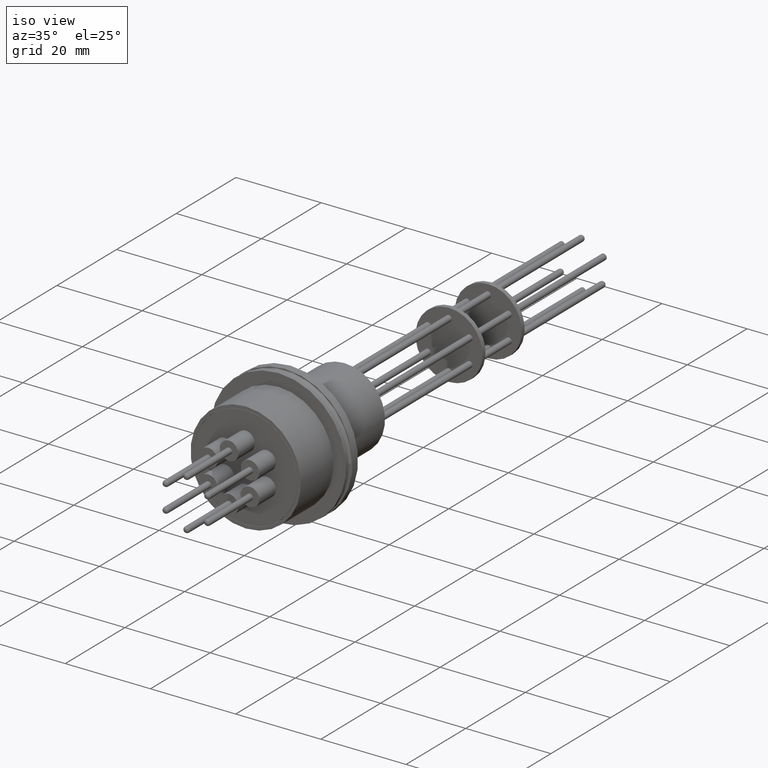
[diagram: clean part render]
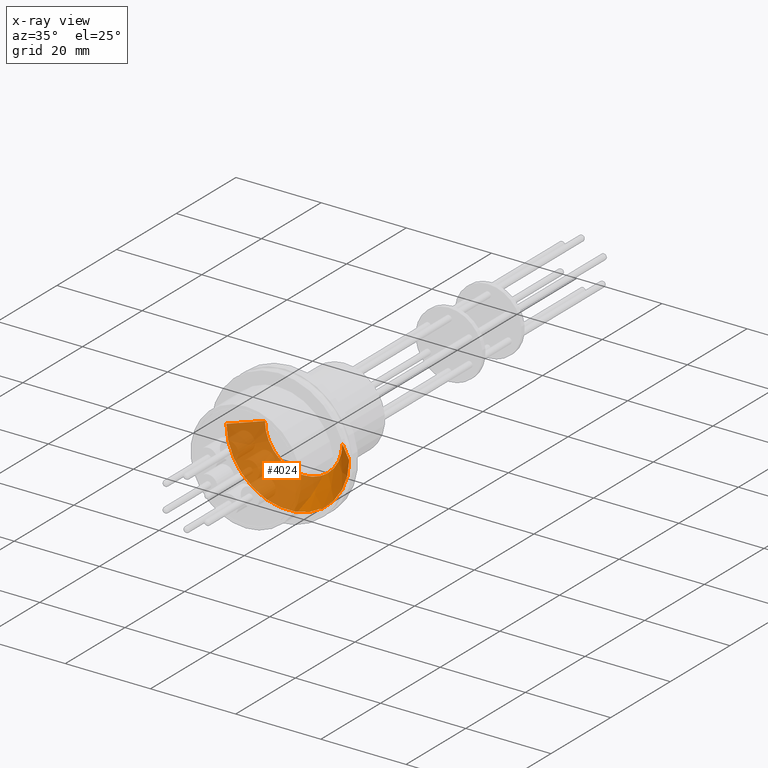
[diagram: x-ray — body ghosted, one internal face saturated and labeled with its STEP entity id]
A machine part, iso view, then the same camera in x-ray: the body is ghosted and one INTERNAL B-rep face — a face not visible from any outside direction — is saturated and labeled: STEP entity #4024.
In plain terms, the highlighted conical surface has half-angle 45 deg.
Its self-contained STEP definition (entity closure, byte-faithful):
#1183 = AXIS2_PLACEMENT_3D ( 'NONE', #3286, #3288, #3301 ) ;
#1231 = AXIS2_PLACEMENT_3D ( 'NONE', #3249, #3246, #3256 ) ;
#1232 = AXIS2_PLACEMENT_3D ( 'NONE', #3273, #3263, #3260 ) ;
#1233 = AXIS2_PLACEMENT_3D ( 'NONE', #3281, #3280, #3290 ) ;
#1662 = VERTEX_POINT ( 'NONE', #5913 ) ;
#1664 = VERTEX_POINT ( 'NONE', #5911 ) ;
#1674 = VERTEX_POINT ( 'NONE', #5901 ) ;
#1700 = VERTEX_POINT ( 'NONE', #5875 ) ;
#1722 = VERTEX_POINT ( 'NONE', #5982 ) ;
#1843 = EDGE_LOOP ( 'NONE', ( #7258, #7259, #7252, #7253, #7251 ) ) ;
#2896 = EDGE_CURVE ( 'NONE', #1700, #1664, #7005, .T. ) ;
#2897 = EDGE_CURVE ( 'NONE', #1700, #1722, #7004, .T. ) ;
#2898 = EDGE_CURVE ( 'NONE', #1674, #1722, #7002, .T. ) ;
#2899 = EDGE_CURVE ( 'NONE', #1662, #1674, #7001, .T. ) ;
#2900 = EDGE_CURVE ( 'NONE', #1664, #1662, #6999, .T. ) ;
#3246 = DIRECTION ( 'NONE',  ( 0.0000000000000000000, -1.000000000000000000, 0.0000000000000000000 ) ) ;
#3249 = CARTESIAN_POINT ( 'NONE',  ( -0.02489983635234983100, 0.8198035689274826300, 0.0000000000000000000 ) ) ;
#3256 = DIRECTION ( 'NONE',  ( 0.0000000000000000000, 0.0000000000000000000, -1.000000000000000000 ) ) ;
#3260 = DIRECTION ( 'NONE',  ( 1.000000000000000000, -1.203457265931388200E-016, 0.0000000000000000000 ) ) ;
#3263 = DIRECTION ( 'NONE',  ( 6.017286329656942200E-017, 1.000000000000000000, -0.0000000000000000000 ) ) ;
#3265 = CARTESIAN_POINT ( 'NONE',  ( 0.5426001636476526200, 0.6103060942444235000, 0.0000000000000000000 ) ) ;
#3273 = CARTESIAN_POINT ( 'NONE',  ( -0.02489983635234983100, 0.6103060942444235000, 0.0000000000000000000 ) ) ;
#3278 = DIRECTION ( 'NONE',  ( 0.7071067811865490200, -0.7071067811865460200, 0.0000000000000000000 ) ) ;
#3280 = DIRECTION ( 'NONE',  ( 0.0000000000000000000, -1.000000000000000000, 0.0000000000000000000 ) ) ;
#3281 = CARTESIAN_POINT ( 'NONE',  ( -0.02489983635234983100, 0.8198035689274826300, 0.0000000000000000000 ) ) ;
#3286 = CARTESIAN_POINT ( 'NONE',  ( -0.02489983635234983100, 0.6103060942444235000, 0.0000000000000000000 ) ) ;
#3288 = DIRECTION ( 'NONE',  ( -6.017286329656942200E-017, -1.000000000000000000, 0.0000000000000000000 ) ) ;
#3290 = DIRECTION ( 'NONE',  ( 0.0000000000000000000, 0.0000000000000000000, -1.000000000000000000 ) ) ;
#3291 = DIRECTION ( 'NONE',  ( -0.7071067811865490200, -0.7071067811865460200, 8.659560562354951300E-017 ) ) ;
#3300 = CARTESIAN_POINT ( 'NONE',  ( -0.5923998363523522700, 0.6103060942444236100, 6.949870585161259100E-017 ) ) ;
#3301 = DIRECTION ( 'NONE',  ( 1.000000000000000000, -1.203457265931388200E-016, 0.0000000000000000000 ) ) ;
#4024 = ADVANCED_FACE ( 'NONE', ( #6893 ), #6887, .F. ) ;
#5875 = CARTESIAN_POINT ( 'NONE',  ( -0.3829023616692922600, 0.8198035689274826300, 5.667068526160944100E-017 ) ) ;
#5901 = CARTESIAN_POINT ( 'NONE',  ( 0.5426001636476525100, 0.6103060942444235000, 0.0000000000000000000 ) ) ;
#5911 = CARTESIAN_POINT ( 'NONE',  ( -0.02489983635234980400, 0.8198035689274826300, -0.3580025253169421000 ) ) ;
#5913 = CARTESIAN_POINT ( 'NONE',  ( 0.3331026889645926100, 0.8198035689274826300, 0.0000000000000000000 ) ) ;
#5982 = CARTESIAN_POINT ( 'NONE',  ( -0.5923998363523522700, 0.6103060942444236100, 6.949870585161259100E-017 ) ) ;
#6887 = CONICAL_SURFACE ( 'NONE', #1183, 0.5675000000000024500, 0.7853981633974503900 ) ;
#6893 = FACE_OUTER_BOUND ( 'NONE', #1843, .T. ) ;
#6997 = VECTOR ( 'NONE', #3278, 39.37007874015748100 ) ;
#6999 = CIRCLE ( 'NONE', #1231, 0.3580025253169424300 ) ;
#7000 = VECTOR ( 'NONE', #3291, 39.37007874015748100 ) ;
#7001 = LINE ( 'NONE', #3265, #6997 ) ;
#7002 = CIRCLE ( 'NONE', #1232, 0.5675000000000024500 ) ;
#7004 = LINE ( 'NONE', #3300, #7000 ) ;
#7005 = CIRCLE ( 'NONE', #1233, 0.3580025253169424300 ) ;
#7251 = ORIENTED_EDGE ( 'NONE', *, *, #2900, .F. ) ;
#7252 = ORIENTED_EDGE ( 'NONE', *, *, #2898, .F. ) ;
#7253 = ORIENTED_EDGE ( 'NONE', *, *, #2899, .F. ) ;
#7258 = ORIENTED_EDGE ( 'NONE', *, *, #2896, .F. ) ;
#7259 = ORIENTED_EDGE ( 'NONE', *, *, #2897, .T. ) ;